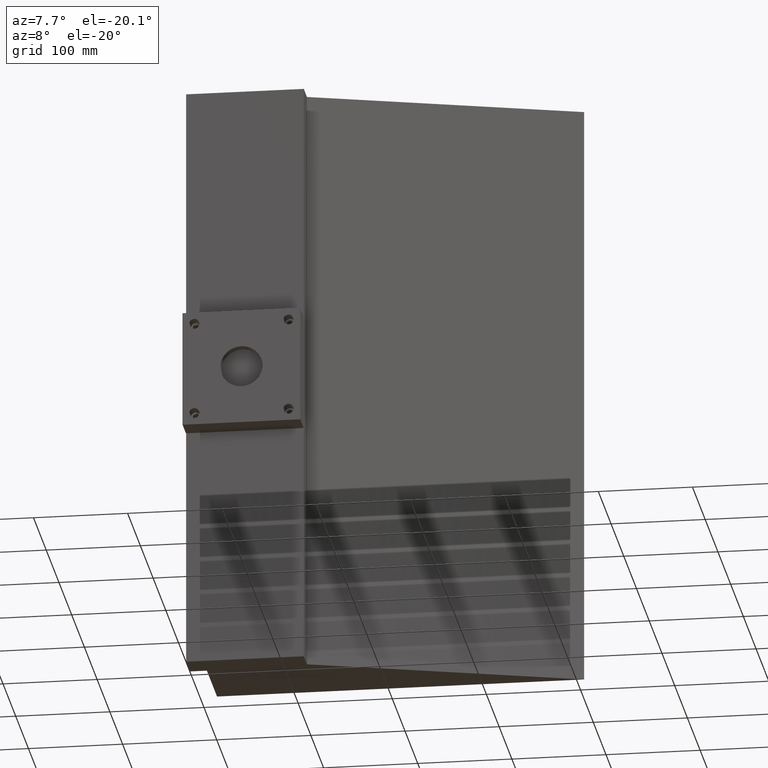
[diagram: clean part render]
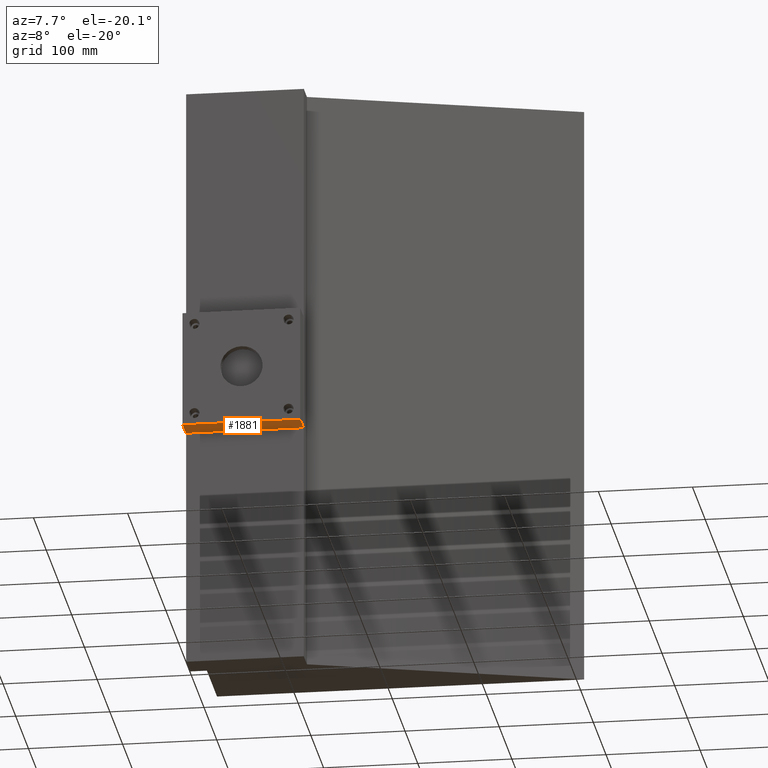
[diagram: same view with one face highlighted and labeled with its STEP entity id]
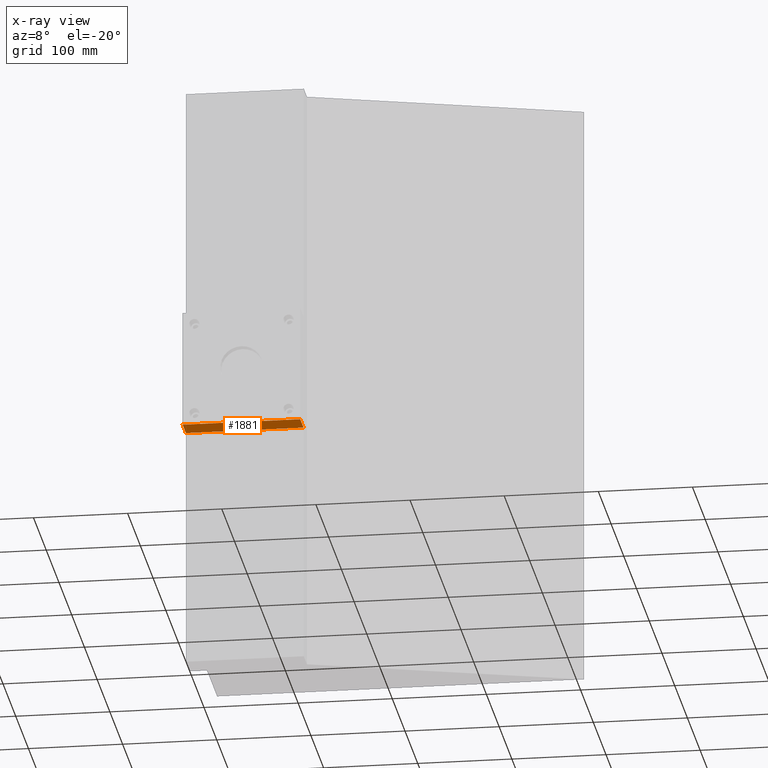
[diagram: x-ray of the same camera — body ghosted, the highlighted face saturated]
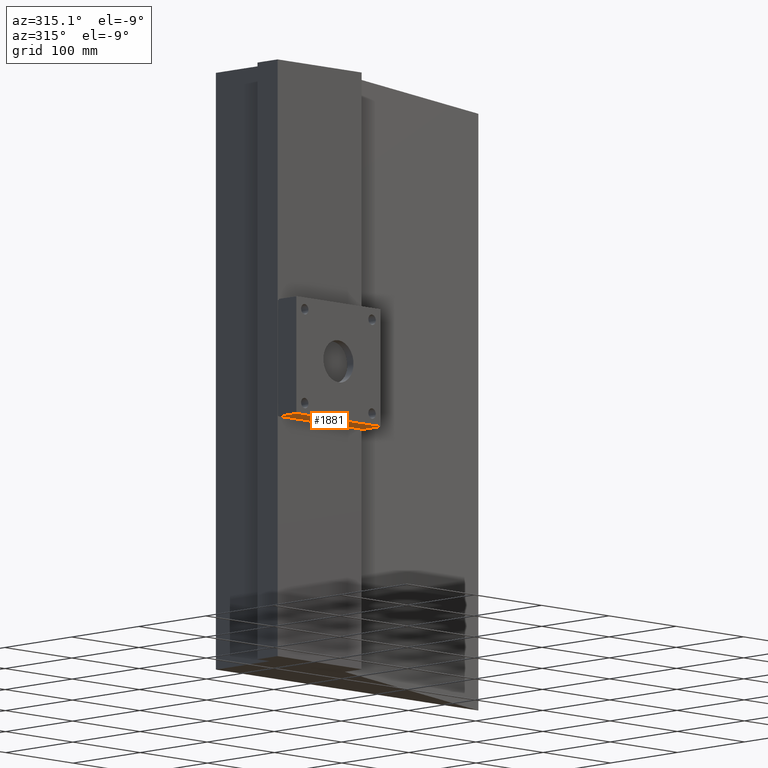
[diagram: same view with one face highlighted and labeled with its STEP entity id]
A machine part, auxiliary view. The second image highlights one B-rep face of the part: STEP entity #1881.
The next image is the same camera in x-ray: the body ghosted, the highlighted face saturated — about 0% of this face is hidden behind the body in this view.
A second angle (auxiliary view) of the same face is appended — the face is thin or edge-on in the first view.
In plain terms, the highlighted planar face has unit normal (0, 0, 1).
Its self-contained STEP definition (entity closure, byte-faithful):
#16 = CARTESIAN_POINT ( 'NONE',  ( -104.1163824607953200, -138.0000000000000300, -62.50000000000061100 ) ) ;
#130 = DIRECTION ( 'NONE',  ( 1.000000000000000000, 0.0000000000000000000, -0.0000000000000000000 ) ) ;
#232 = VERTEX_POINT ( 'NONE', #2226 ) ;
#249 = AXIS2_PLACEMENT_3D ( 'NONE', #423, #2228, #130 ) ;
#280 = CARTESIAN_POINT ( 'NONE',  ( -104.1163824607953200, -112.0000000000000400, -62.50000000000061100 ) ) ;
#423 = CARTESIAN_POINT ( 'NONE',  ( -104.1163824607953200, -112.0000000000000400, -62.50000000000061100 ) ) ;
#454 = CARTESIAN_POINT ( 'NONE',  ( -104.1163824607953200, -138.0000000000000300, -62.50000000000061100 ) ) ;
#483 = VERTEX_POINT ( 'NONE', #1928 ) ;
#583 = DIRECTION ( 'NONE',  ( -1.000000000000000000, -0.0000000000000000000, -0.0000000000000000000 ) ) ;
#589 = VERTEX_POINT ( 'NONE', #2035 ) ;
#738 = VERTEX_POINT ( 'NONE', #16 ) ;
#864 = ORIENTED_EDGE ( 'NONE', *, *, #1646, .T. ) ;
#919 = CARTESIAN_POINT ( 'NONE',  ( -104.1163824607953200, -112.0000000000000400, -62.50000000000061100 ) ) ;
#1130 = VECTOR ( 'NONE', #583, 1000.000000000000000 ) ;
#1158 = LINE ( 'NONE', #280, #1130 ) ;
#1161 = PLANE ( 'NONE',  #249 ) ;
#1164 = LINE ( 'NONE', #919, #2493 ) ;
#1326 = EDGE_CURVE ( 'NONE', #483, #738, #1164, .T. ) ;
#1333 = ORIENTED_EDGE ( 'NONE', *, *, #1326, .F. ) ;
#1357 = LINE ( 'NONE', #454, #1430 ) ;
#1430 = VECTOR ( 'NONE', #2103, 1000.000000000000000 ) ;
#1646 = EDGE_CURVE ( 'NONE', #589, #738, #1357, .T. ) ;
#1666 = ORIENTED_EDGE ( 'NONE', *, *, #1922, .T. ) ;
#1757 = DIRECTION ( 'NONE',  ( -0.0000000000000000000, -1.000000000000000000, -0.0000000000000000000 ) ) ;
#1881 = ADVANCED_FACE ( 'NONE', ( #2173 ), #1161, .F. ) ;
#1922 = EDGE_CURVE ( 'NONE', #232, #589, #2069, .T. ) ;
#1928 = CARTESIAN_POINT ( 'NONE',  ( -104.1163824607953200, -112.0000000000000400, -62.50000000000061100 ) ) ;
#1956 = VECTOR ( 'NONE', #2746, 1000.000000000000000 ) ;
#2035 = CARTESIAN_POINT ( 'NONE',  ( 20.88361753920466100, -138.0000000000000300, -62.50000000000061100 ) ) ;
#2069 = LINE ( 'NONE', #2581, #1956 ) ;
#2103 = DIRECTION ( 'NONE',  ( -1.000000000000000000, -0.0000000000000000000, -0.0000000000000000000 ) ) ;
#2173 = FACE_OUTER_BOUND ( 'NONE', #2831, .T. ) ;
#2191 = EDGE_CURVE ( 'NONE', #232, #483, #1158, .T. ) ;
#2204 = ORIENTED_EDGE ( 'NONE', *, *, #2191, .F. ) ;
#2226 = CARTESIAN_POINT ( 'NONE',  ( 20.88361753920466100, -112.0000000000000400, -62.50000000000061100 ) ) ;
#2228 = DIRECTION ( 'NONE',  ( 0.0000000000000000000, 0.0000000000000000000, 1.000000000000000000 ) ) ;
#2493 = VECTOR ( 'NONE', #1757, 1000.000000000000000 ) ;
#2581 = CARTESIAN_POINT ( 'NONE',  ( 20.88361753920466100, -112.0000000000000400, -62.50000000000061100 ) ) ;
#2746 = DIRECTION ( 'NONE',  ( -0.0000000000000000000, -1.000000000000000000, -0.0000000000000000000 ) ) ;
#2831 = EDGE_LOOP ( 'NONE', ( #864, #1333, #2204, #1666 ) ) ;